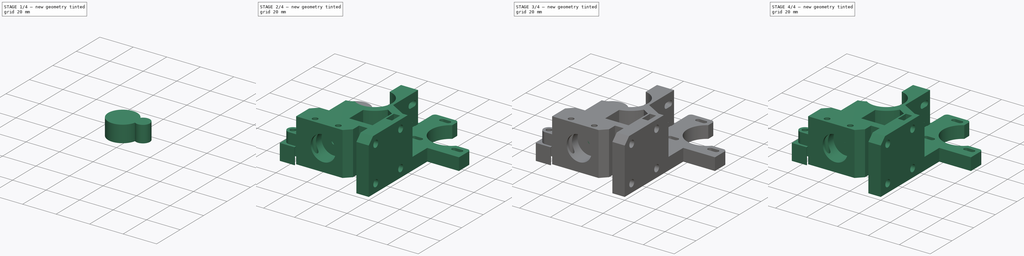
[diagram: build sequence overview — one tinted view per stage of 4, left to right]
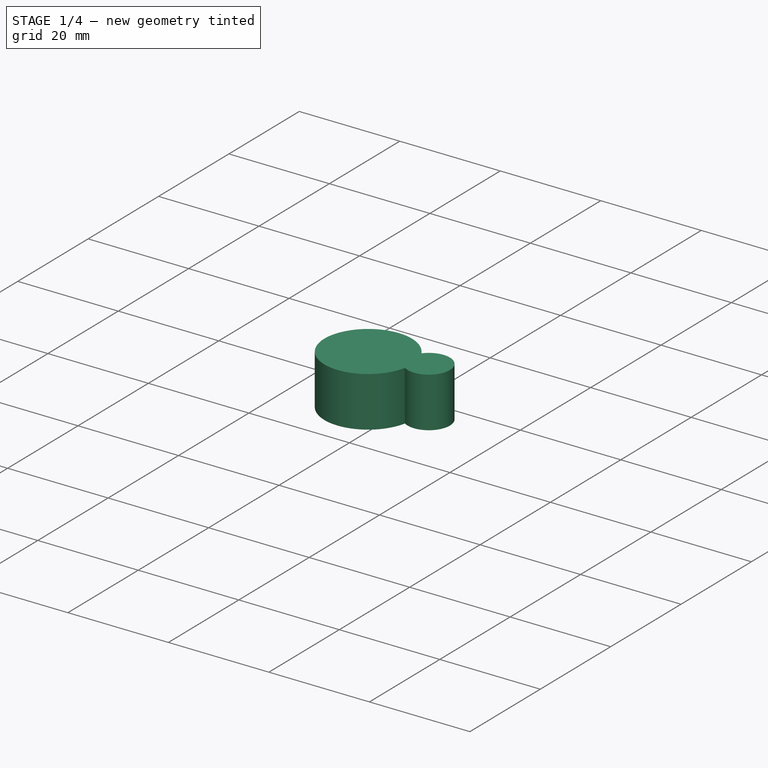
[diagram: stage 1 of 4 — iso view after this stage's code; geometry added in this stage tinted green]
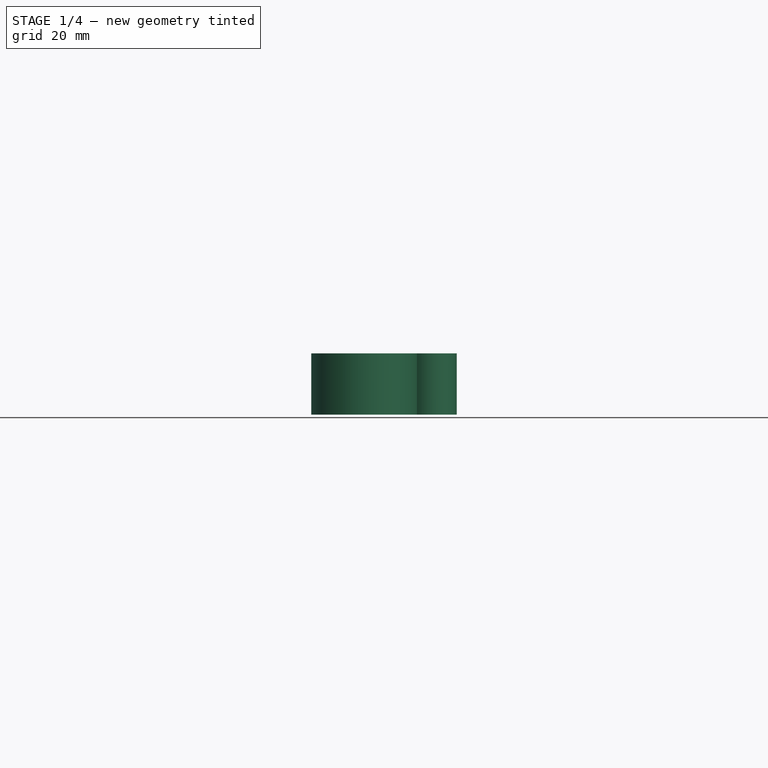
[diagram: stage 1 of 4 — front view after this stage's code; geometry added in this stage tinted green]
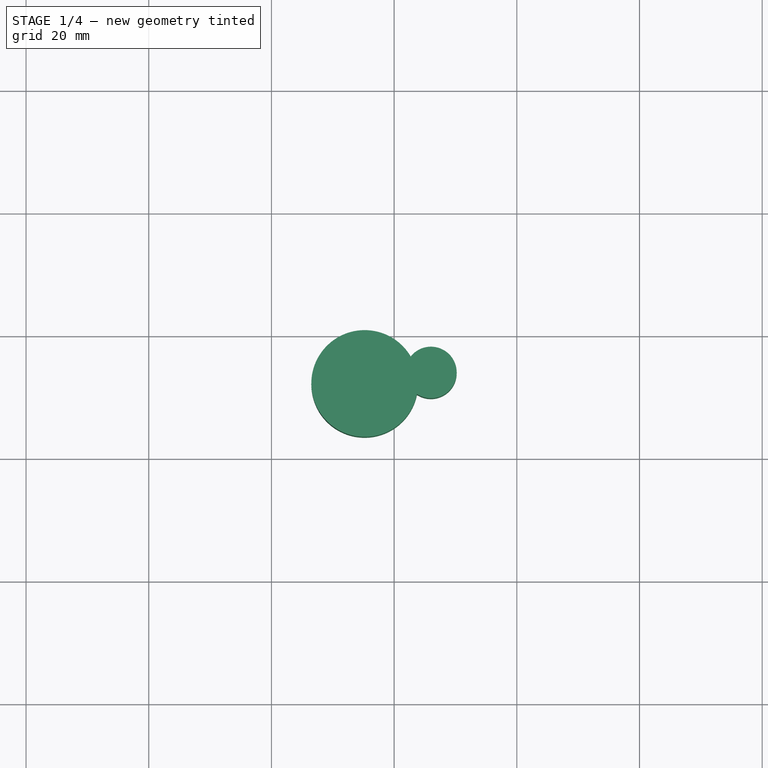
[diagram: stage 1 of 4 — top view after this stage's code; geometry added in this stage tinted green]
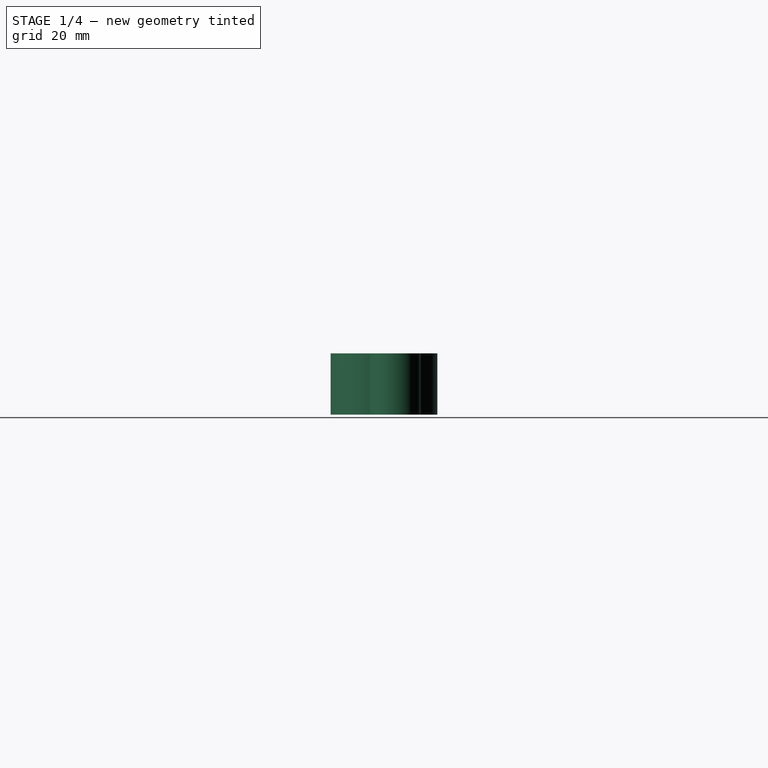
[diagram: stage 1 of 4 — right view after this stage's code; geometry added in this stage tinted green]
FCSTD DOCUMENT  (FreeCAD 0.14R3702 (Git))
Label: i3-rework-wade-extruder-1.75-nema14
License: CC-BY 3.0
LicenseURL: http://creativecommons.org/licenses/by/3.0/
objects: Sketcher::SketchObject×3, Part::Cut×3, PartDesign::Pad×2, Part::MultiFuse×2, Part::Cylinder×2, Part::Box×1, Part::Feature×1
note: 16 computed .brp shape members not serialized (recipe doc carries the construction recipe); baked Part::Feature solids carry a one-line shape summary decoded from their .brp

FEATURE [Part::Cylinder] Cylinder
  Angle = 360
  Height = 10
  Placement = pos=(-44.8,52.2,10) rot=(0,0,1;0rad)
  Radius = 8.7
FEATURE [Part::Cylinder] Cylinder001
  Angle = 360
  Height = 10
  Placement = pos=(-34,54,10) rot=(0,0,1;0rad)
  Radius = 4.2
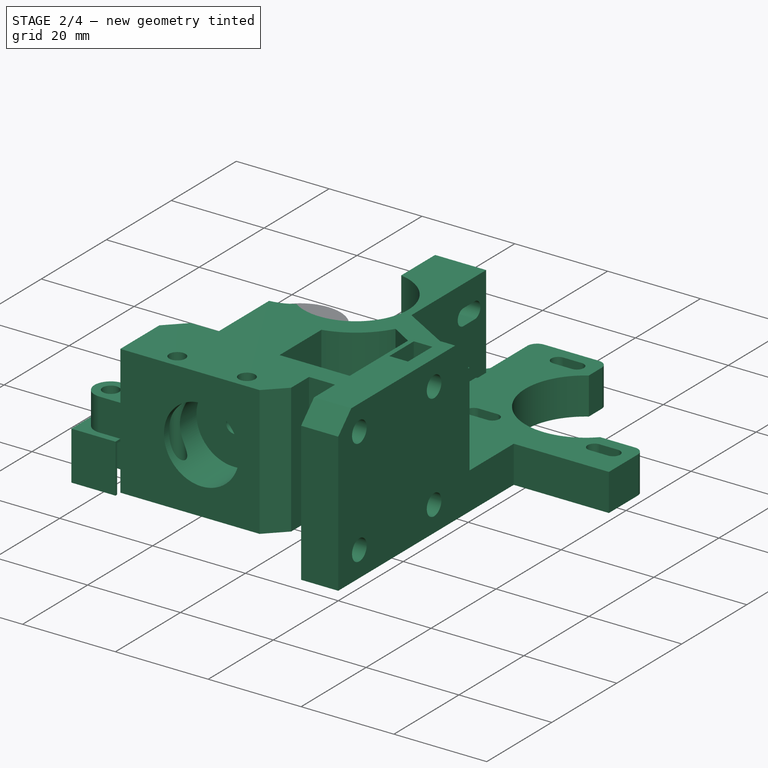
[diagram: stage 2 of 4 — iso view after this stage's code; geometry added in this stage tinted green]
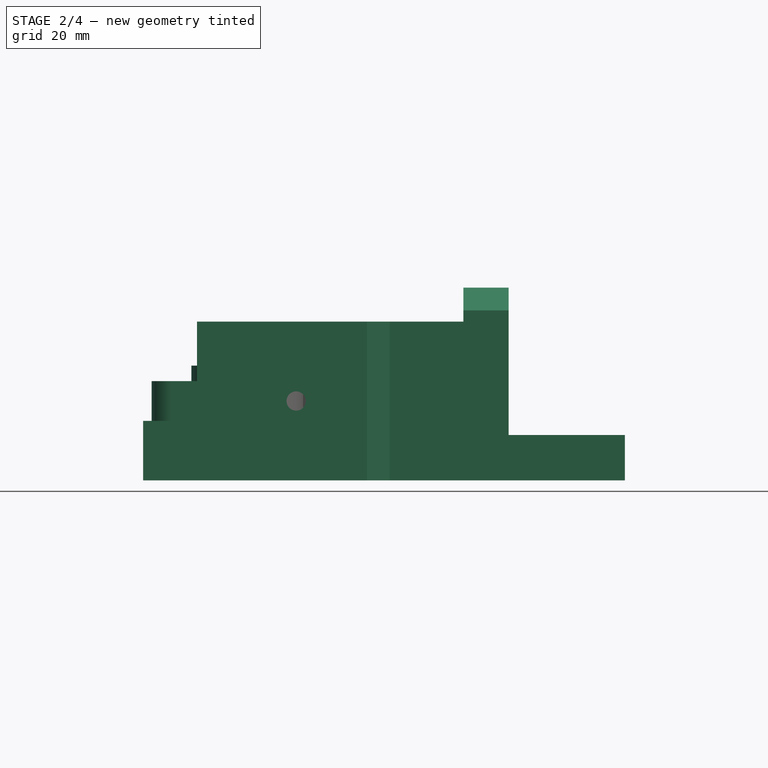
[diagram: stage 2 of 4 — front view after this stage's code; geometry added in this stage tinted green]
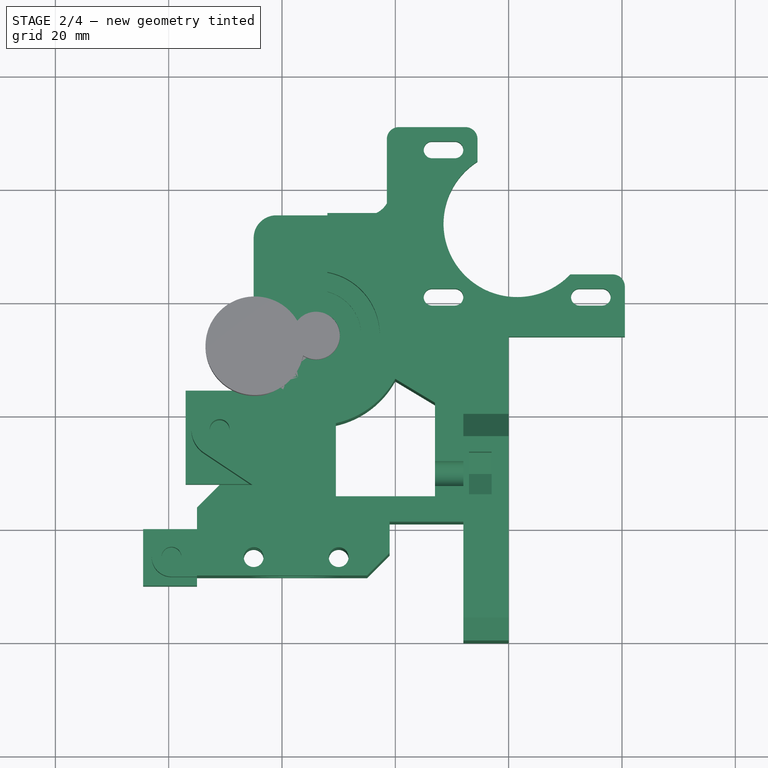
[diagram: stage 2 of 4 — top view after this stage's code; geometry added in this stage tinted green]
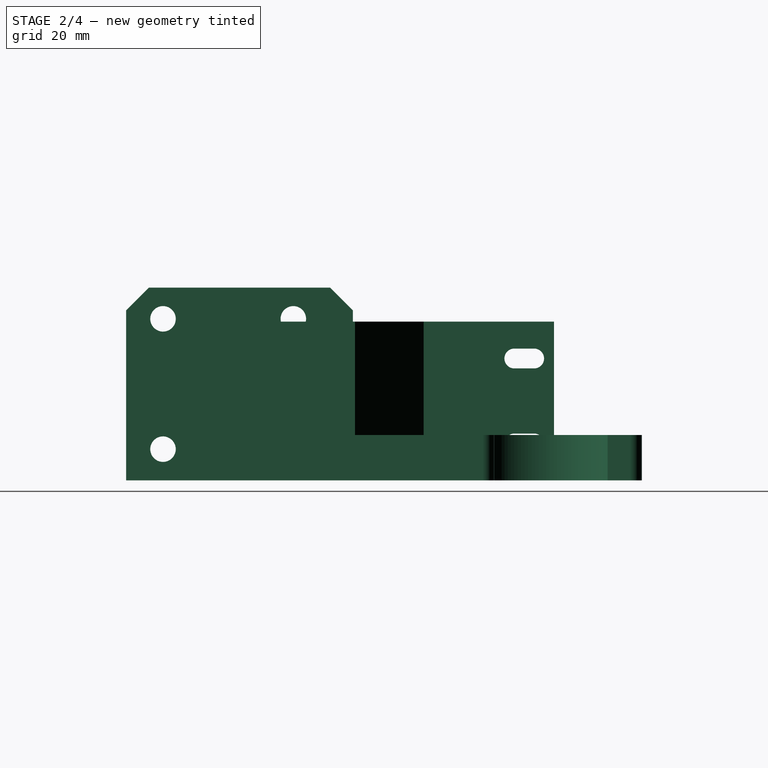
[diagram: stage 2 of 4 — right view after this stage's code; geometry added in this stage tinted green]
FEATURE [Part::Box] Box  label="Cube"
  Height = 10
  Length = 46
  Placement = pos=(-21,53,0) rot=(0,0,1;0rad)
  Width = 43
FEATURE [Sketcher::SketchObject] Sketch001
  Placement = pos=(1.5,74,0) rot=(0,0,1;0rad)
  sketch-geometry (34):
    g0: LineSegment [constr] StartX=-13 StartY=13 StartZ=0 EndX=13 EndY=13 EndZ=0
    g1: LineSegment [constr] StartX=13 StartY=13 StartZ=0 EndX=13 EndY=-13 EndZ=0
    g2: LineSegment [constr] StartX=13 StartY=-13 StartZ=0 EndX=-13 EndY=-13 EndZ=0
    g3: LineSegment [constr] StartX=-13 StartY=-13 StartZ=0 EndX=-13 EndY=13 EndZ=0
    g4: ArcOfCircle CenterX=-15 CenterY=13 CenterZ=0 NormalX=0 NormalY=0 NormalZ=1 Radius=1.5 StartAngle=1.5708 EndAngle=4.71239
    g5: ArcOfCircle CenterX=-11 CenterY=13 CenterZ=0 NormalX=0 NormalY=0 NormalZ=1 Radius=1.5 StartAngle=4.71238 EndAngle=7.85398
    g6: LineSegment StartX=-15 StartY=11.5 StartZ=0 EndX=-11 EndY=11.5 EndZ=0
    g7: LineSegment StartX=-15 StartY=14.5 StartZ=0 EndX=-11 EndY=14.5 EndZ=0
    g8: ArcOfCircle CenterX=-15 CenterY=-13 CenterZ=0 NormalX=0 NormalY=0 NormalZ=1 Radius=1.5 StartAngle=1.5708 EndAngle=4.71239
    g9: ArcOfCircle CenterX=-11 CenterY=-13 CenterZ=0 NormalX=0 NormalY=0 NormalZ=1 Radius=1.5 StartAngle=4.71238 EndAngle=7.85398
    g10: LineSegment StartX=-15 StartY=-14.5 StartZ=0 EndX=-11 EndY=-14.5 EndZ=0
    g11: LineSegment StartX=-15 StartY=-11.5 StartZ=0 EndX=-11 EndY=-11.5 EndZ=0
    g12: ArcOfCircle CenterX=11 CenterY=-13 CenterZ=0 NormalX=0 NormalY=0 NormalZ=1 Radius=1.5 StartAngle=1.5708 EndAngle=4.71239
    g13: ArcOfCircle CenterX=15 CenterY=-13 CenterZ=0 NormalX=0 NormalY=0 NormalZ=1 Radius=1.5 StartAngle=4.71239 EndAngle=7.85398
    g14: LineSegment StartX=11 StartY=-14.5 StartZ=0 EndX=15 EndY=-14.5 EndZ=0
    g15: LineSegment StartX=11 StartY=-11.5 StartZ=0 EndX=15 EndY=-11.5 EndZ=0
    g16: ArcOfCircle CenterX=0 CenterY=0 CenterZ=0 NormalX=0 NormalY=0 NormalZ=1 Radius=13 StartAngle=2.13941 EndAngle=5.5185
    g17: LineSegment [constr] StartX=-22 StartY=22 StartZ=0 EndX=22 EndY=22 EndZ=0
    g18: LineSegment [constr] StartX=22 StartY=22 StartZ=0 EndX=22 EndY=-22 EndZ=0
    g19: LineSegment [constr] StartX=-22 StartY=-22 StartZ=0 EndX=-22 EndY=22 EndZ=0
    g20: LineSegment [constr] StartX=-23 StartY=-9 StartZ=0 EndX=-9.38083 EndY=-9 EndZ=0
    g21: LineSegment StartX=19 StartY=-11.1213 StartZ=0 EndX=19 EndY=-20 EndZ=0
    g22: LineSegment StartX=-23 StartY=-22 StartZ=0 EndX=-23 EndY=-9 EndZ=0
    g23: LineSegment StartX=9.38083 StartY=-9 StartZ=0 EndX=16.8787 EndY=-9 EndZ=0
    g24: ArcOfCircle CenterX=16.8787 CenterY=-11.1213 CenterZ=0 NormalX=0 NormalY=0 NormalZ=1 Radius=2.12132 StartAngle=0 EndAngle=1.5708
    g25: LineSegment [constr] StartX=-22 StartY=-22 StartZ=0 EndX=22 EndY=-22 EndZ=0
    g26: LineSegment StartX=-1.5 StartY=-20 StartZ=0 EndX=19 EndY=-20 EndZ=0
    g27: LineSegment StartX=-1.5 StartY=-20 StartZ=0 EndX=-1.5 EndY=-22 EndZ=0
    g28: LineSegment StartX=-1.5 StartY=-22 StartZ=0 EndX=-23 EndY=-22 EndZ=0
    g29: LineSegment StartX=-23 StartY=14.8787 StartZ=0 EndX=-23 EndY=-9 EndZ=0
    g30: LineSegment StartX=-20.8787 StartY=17 StartZ=0 EndX=-9.12132 EndY=17 EndZ=0
    g31: LineSegment StartX=-7 StartY=14.8787 StartZ=0 EndX=-7 EndY=10.9545 EndZ=0
    g32: ArcOfCircle CenterX=-9.12132 CenterY=14.8787 CenterZ=0 NormalX=0 NormalY=0 NormalZ=1 Radius=2.12132 StartAngle=0 EndAngle=1.5708
    g33: ArcOfCircle CenterX=-20.8787 CenterY=14.8787 CenterZ=0 NormalX=0 NormalY=0 NormalZ=1 Radius=2.12132 StartAngle=1.5708 EndAngle=3.14159
  constraints (102):
    c: Coincident(g0,g1)
    c: Coincident(g1,g2)
    c: Coincident(g2,g3)
    c: Coincident(g3,g0)
    c: Horizontal(g2)
    c: Vertical(g3)
    c: Equal(g0,g3)
    c: Equal(g3,g2)
    c: Equal(g2,g1)
    c: Symmetric(g0,g0,g-2)
    c: Symmetric(g1,g0,g-1)
    c: Distance(g0) = 26
    c: Tangent(g4,g6)
    c: Tangent(g4,g7)
    c: Tangent(g5,g7)
    c: Coincident(g4,g7)
    c: Coincident(g4,g6)
    c: Coincident(g6,g5)
    c: Coincident(g7,g5)
    c: Horizontal(g6)
    c: Equal(g4,g5)
    c: Symmetric(g5,g4,g3)
    c: PointOnObject(g5,g0)
    c: DistanceY(g4,g4) = -3
    c: DistanceX(g7) = 4
    c: Tangent(g8,g10)
    c: Tangent(g8,g11)
    c: Tangent(g9,g11)
    c: Coincident(g8,g11)
    c: Coincident(g8,g10)
    c: Coincident(g10,g9)
    c: Coincident(g11,g9)
    c: Horizontal(g10)
    c: Equal(g8,g9)
    c: DistanceX(g10) = 4
    c: DistanceY(g8,g8) = -3
    c: Symmetric(g9,g8,g3)
    c: PointOnObject(g9,g2)
    c: Tangent(g12,g14)
    c: Tangent(g12,g15)
    c: Tangent(g13,g14)
    c: Tangent(g13,g15)
    c: Coincident(g12,g15)
    c: Coincident(g12,g14)
    c: Coincident(g14,g13)
    c: Coincident(g15,g13)
    c: Horizontal(g14)
    c: Equal(g12,g13)
    c: DistanceX(g14) = 4
    c: DistanceY(g13,g13) = -3
    c: Coincident(g16,g-1)
    c: Radius(g16) = 13
    c: Coincident(g17,g18)
    c: Coincident(g19,g17)
    c: Horizontal(g17)
    c: Vertical(g18)
    c: Vertical(g19)
    c: Symmetric(g17,g17,g-2)
    c: Symmetric(g18,g17,g-1)
    c: DistanceY(g18) = -44
    c: Symmetric(g12,g13,g1)
    c: PointOnObject(g12,g2)
    c: Coincident(g22,g20)
    c: Horizontal(g20)
    c: Vertical(g21)
    c: Vertical(g22)
    c: DistanceY(g22) = 13
    c: PointOnObject(g20,g16)
    c: Tangent(g20,g23)
    c: Tangent(g23,g24)
    c: Tangent(g21,g24)
    c: Distance(g23,g21) = 3
    c: Coincident(g25,g19)
    c: Coincident(g25,g18)
    c: Horizontal(g25)
    c: DistanceY(g21,g18) = -2
    c: Coincident(g26,g21)
    c: Horizontal(g26)
    c: DistanceX(g26) = 20.5
    c: Coincident(g27,g26)
    c: PointOnObject(g27,g25)
    c: Coincident(g28,g27)
    c: Coincident(g28,g22)
    c: Horizontal(g28)
    c: DistanceX(g21,g19) = -41
    c: Vertical(g27)
    c: Equal(g25,g18)
    c: Vertical(g29)
    c: Vertical(g31)
    c: Horizontal(g30)
    c: Coincident(g29,g20)
    c: Tangent(g30,g32)
    c: Tangent(g31,g32)
    c: Distance(g31,g30) = 3
    c: Coincident(g16,g31)
    c: Coincident(g16,g23)
    c: DistanceX(g22,g19) = 1
    c: Tangent(g30,g33)
    c: Tangent(g29,g33)
    c: Distance(g30,g29) = 3
    c: DistanceY(g20,g30) = 26
    c: DistanceX(g31,g29) = -16
FEATURE [Part::Feature] Part__Feature  label="BODY-EXTRUDEUR-WADE-3mm"
  shape: bbox 89.5 x 95.5 x 34 mm, 223 faces (baked)
FEATURE [Sketcher::SketchObject] Sketch
  Placement = pos=(0,0,0) rot=(1,0,0;3.14159rad)
  Support = -> Part__Feature [Face218]
  sketch-geometry (28):
    g0: LineSegment [constr] StartX=-11.1629 StartY=-60.9952 StartZ=0 EndX=14.8371 EndY=-86.9952 EndZ=0
    g1: LineSegment [constr] StartX=14.8371 StartY=-60.9952 StartZ=0 EndX=-11.1629 EndY=-86.9952 EndZ=0
    g2: GeomPoint [constr] X=1.83709 Y=-73.9952 Z=0
    g3: LineSegment [constr] StartX=-11.1629 StartY=-60.9952 StartZ=0 EndX=14.8371 EndY=-60.9952 EndZ=0
    g4: LineSegment [constr] StartX=-11.1629 StartY=-86.9952 StartZ=0 EndX=14.8371 EndY=-86.9952 EndZ=0
    g5: LineSegment [constr] StartX=-13.2629 StartY=-60.9952 StartZ=0 EndX=-11.1629 EndY=-60.9952 EndZ=0
    g6: LineSegment [constr] StartX=-11.1629 StartY=-60.9952 StartZ=0 EndX=-9.06292 EndY=-60.9952 EndZ=0
    g7: Circle [constr] CenterX=-13.2629 CenterY=-60.9952 CenterZ=0 NormalX=0 NormalY=0 NormalZ=1 Radius=1.6
    g8: Circle [constr] CenterX=-9.06292 CenterY=-60.9952 CenterZ=0 NormalX=0 NormalY=0 NormalZ=1 Radius=1.6
    g9: LineSegment StartX=-13.2629 StartY=-59.3952 StartZ=0 EndX=-9.06291 EndY=-59.3952 EndZ=0
    g10: LineSegment StartX=-13.2629 StartY=-62.5952 StartZ=0 EndX=-9.06294 EndY=-62.5952 EndZ=0
    g11: ArcOfCircle CenterX=-13.2629 CenterY=-60.9952 CenterZ=0 NormalX=0 NormalY=0 NormalZ=1 Radius=1.6 StartAngle=1.5708 EndAngle=4.71239
    g12: ArcOfCircle CenterX=-9.06292 CenterY=-60.9952 CenterZ=0 NormalX=0 NormalY=0 NormalZ=1 Radius=1.6 StartAngle=4.71238 EndAngle=7.85398
    g13: LineSegment [constr] StartX=-13.2629 StartY=-86.9952 StartZ=0 EndX=-11.1629 EndY=-86.9952 EndZ=0
    g14: LineSegment [constr] StartX=-11.1629 StartY=-86.9952 StartZ=0 EndX=-9.06292 EndY=-86.9952 EndZ=0
    g15: LineSegment [constr] StartX=12.7371 StartY=-60.9952 StartZ=0 EndX=14.8371 EndY=-60.9952 EndZ=0
    g16: LineSegment [constr] StartX=14.8371 StartY=-60.9952 StartZ=0 EndX=16.9371 EndY=-60.9952 EndZ=0
    g17: Circle [constr] CenterX=12.7371 CenterY=-60.9952 CenterZ=0 NormalX=0 NormalY=0 NormalZ=1 Radius=1.6
    g18: Circle [constr] CenterX=16.9371 CenterY=-60.9952 CenterZ=0 NormalX=0 NormalY=0 NormalZ=1 Radius=1.6
    g19: LineSegment StartX=12.7371 StartY=-59.3952 StartZ=0 EndX=16.9371 EndY=-59.3952 EndZ=0
    g20: LineSegment StartX=12.7371 StartY=-62.5952 StartZ=0 EndX=16.9371 EndY=-62.5952 EndZ=0
    g21: ArcOfCircle CenterX=12.7371 CenterY=-60.9952 CenterZ=0 NormalX=0 NormalY=0 NormalZ=1 Radius=1.6 StartAngle=1.5708 EndAngle=4.71238
    g22: ArcOfCircle CenterX=16.9371 CenterY=-60.9952 CenterZ=0 NormalX=0 NormalY=0 NormalZ=1 Radius=1.6 StartAngle=4.7124 EndAngle=7.85399
    g23: LineSegment [constr] StartX=-11.1629 StartY=-60.9952 StartZ=0 EndX=-11.1629 EndY=-86.9952 EndZ=0
    g24: ArcOfCircle CenterX=-13.2629 CenterY=-86.9952 CenterZ=0 NormalX=0 NormalY=0 NormalZ=1 Radius=0.907863 StartAngle=2.7456 EndAngle=7.85398
    g25: ArcOfCircle CenterX=-12.5038 CenterY=-85.1795 CenterZ=0 NormalX=0 NormalY=0 NormalZ=1 Radius=0.907863 StartAngle=4.71239 EndAngle=9.02878
    g26: LineSegment StartX=-13.2629 StartY=-86.0873 StartZ=0 EndX=-12.5038 EndY=-86.0873 EndZ=0
    g27: LineSegment StartX=-14.1005 StartY=-86.645 StartZ=0 EndX=-13.3414 EndY=-84.8293 EndZ=0
FEATURE [PartDesign::Pad] Pad
  Length = 8
  Length2 = 100
  Placement = pos=(1.5,74,0) rot=(0,0,1;0rad)
  Sketch = -> Sketch001
  Type = 0
FEATURE [Part::Cut] Cut
  Base = -> Part__Feature
  Tool = -> Box
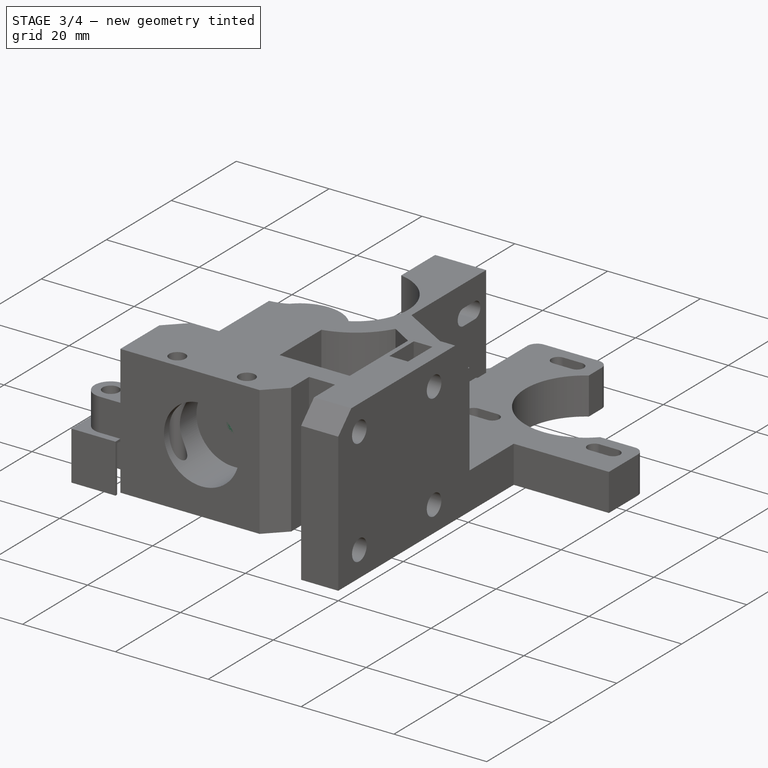
[diagram: stage 3 of 4 — iso view after this stage's code; geometry added in this stage tinted green]
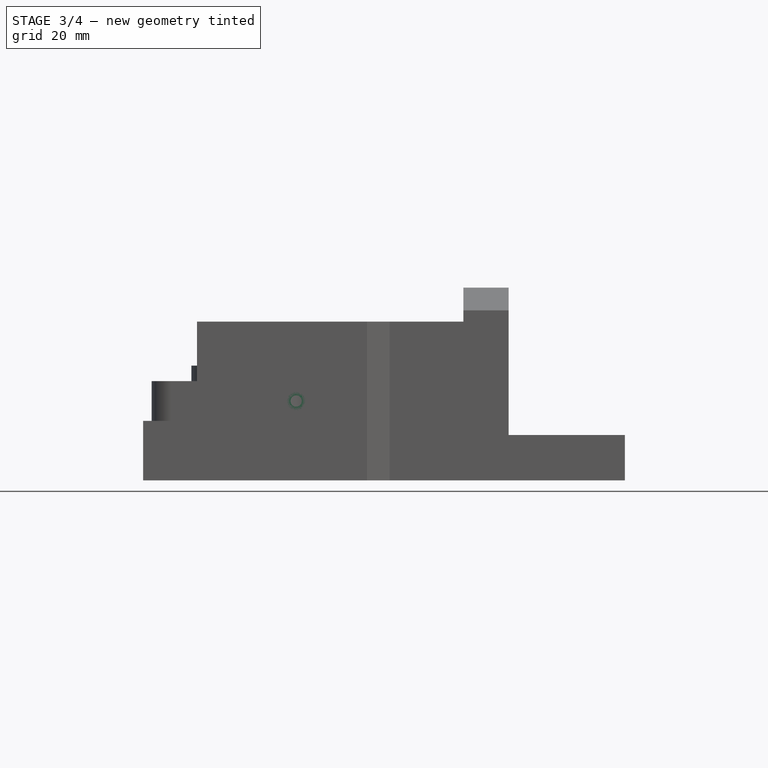
[diagram: stage 3 of 4 — front view after this stage's code; geometry added in this stage tinted green]
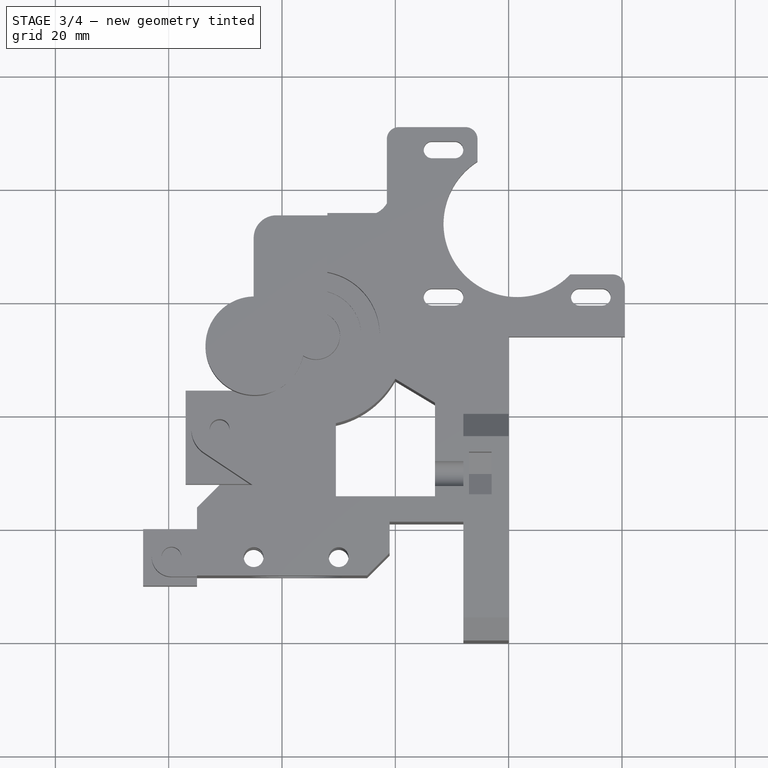
[diagram: stage 3 of 4 — top view after this stage's code; geometry added in this stage tinted green]
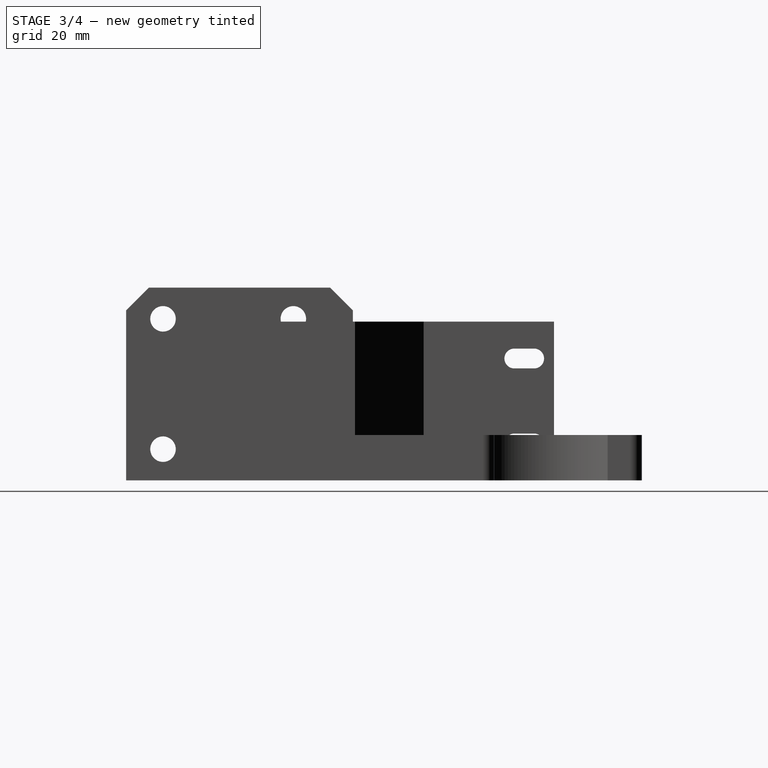
[diagram: stage 3 of 4 — right view after this stage's code; geometry added in this stage tinted green]
FEATURE [Part::MultiFuse] Fusion
  Shapes = -> [Pad,Cut]
FEATURE [Sketcher::SketchObject] Sketch002
  ExternalGeometry = -> [Fusion]
  Placement = pos=(0,21.5,0) rot=(1,0,0;1.5708rad)
  Support = -> Fusion [Face176]
  sketch-geometry (2):
    g0: Circle CenterX=-37.5 CenterY=14 CenterZ=0 NormalX=0 NormalY=0 NormalZ=1 Radius=1.75
    g1: Circle CenterX=-37.5 CenterY=14 CenterZ=0 NormalX=0 NormalY=0 NormalZ=1 Radius=1
  constraints (4):
    c: Coincident(g0,g-3)
    c: Radius(g0) = 1.75
    c: Coincident(g1,g0)
    c: Radius(g1) = 1
FEATURE [PartDesign::Pad] Pad001
  Length = 29
  Length2 = 100
  Reversed = true
  Sketch = -> Sketch002
  Type = 0
FEATURE [Part::MultiFuse] Fusion001
  Shapes = -> [Pad001,Fusion]
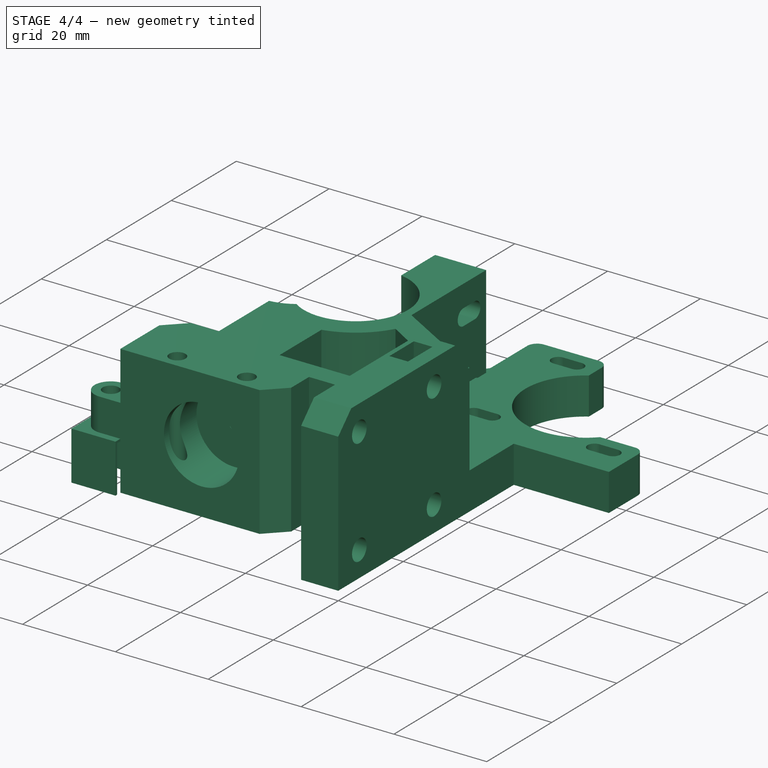
[diagram: stage 4 of 4 — iso view after this stage's code; geometry added in this stage tinted green]
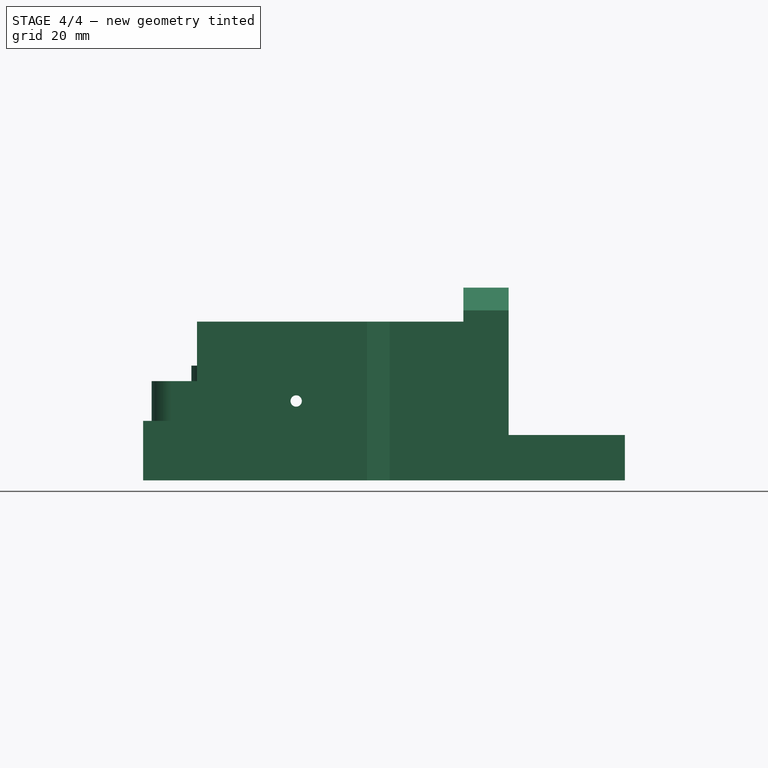
[diagram: stage 4 of 4 — front view after this stage's code; geometry added in this stage tinted green]
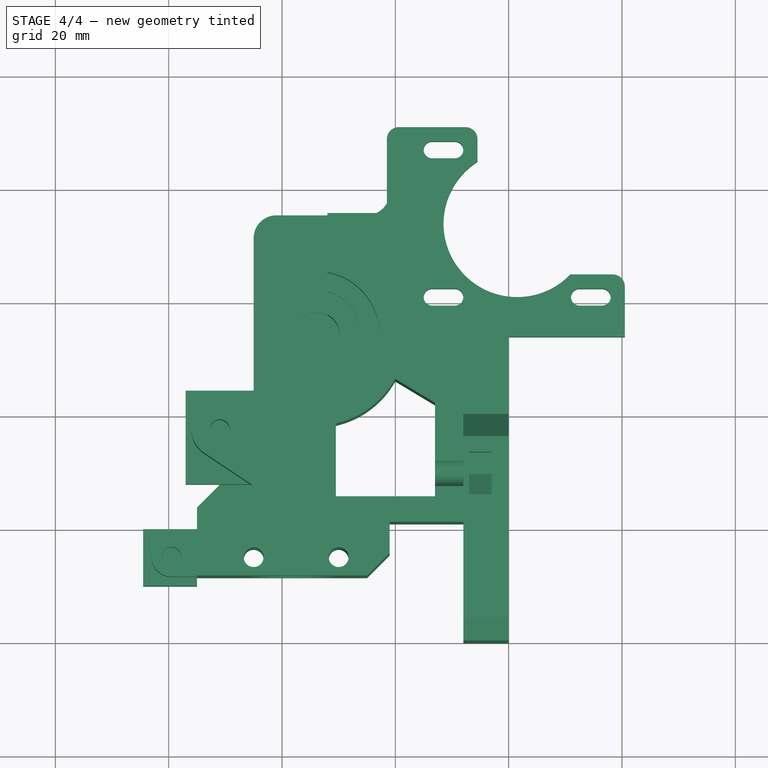
[diagram: stage 4 of 4 — top view after this stage's code; geometry added in this stage tinted green]
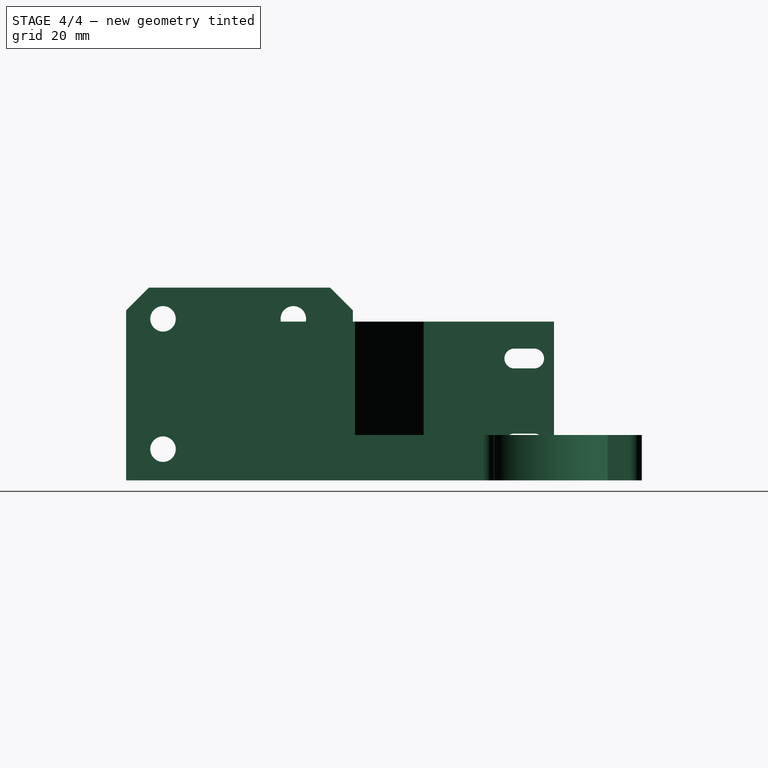
[diagram: stage 4 of 4 — right view after this stage's code; geometry added in this stage tinted green]
FEATURE [Part::Cut] Cut001
  Base = -> Fusion001
  Tool = -> Cylinder
FEATURE [Part::Cut] Cut002
  Base = -> Cut001
  Tool = -> Cylinder001
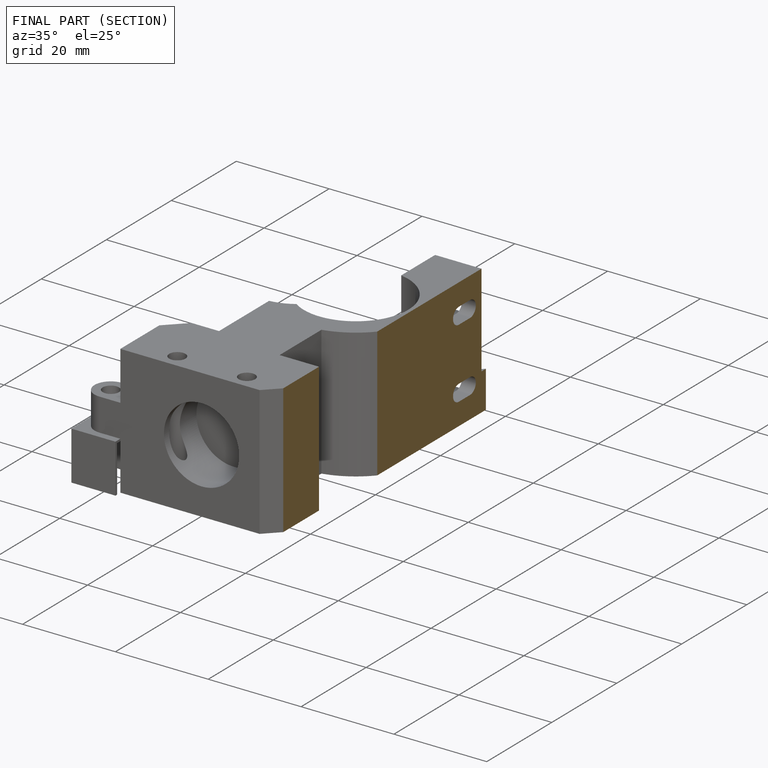
[diagram: finished part — half-section view (interior)]
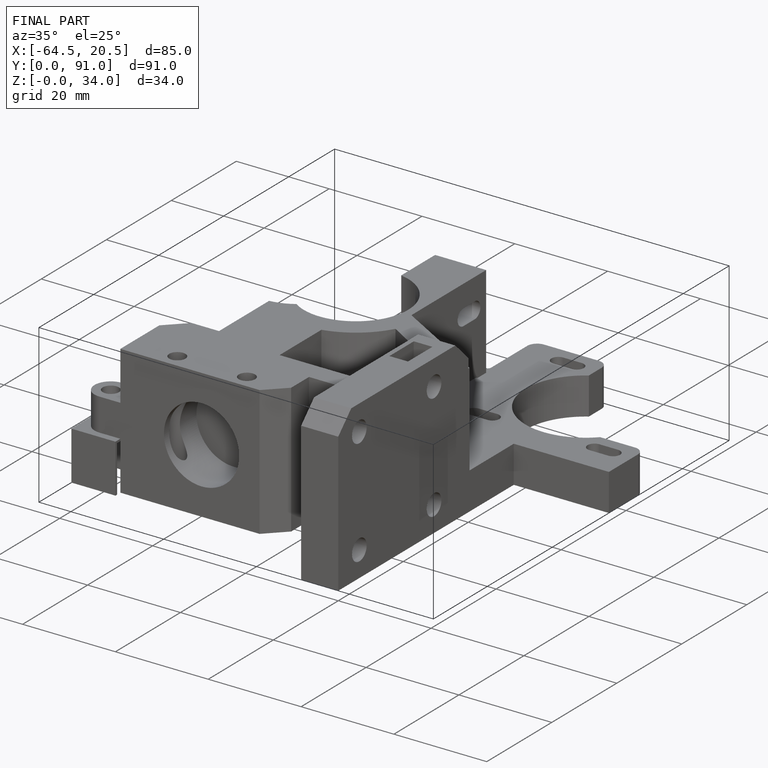
[diagram: finished part — iso view with bounding-box wireframe]
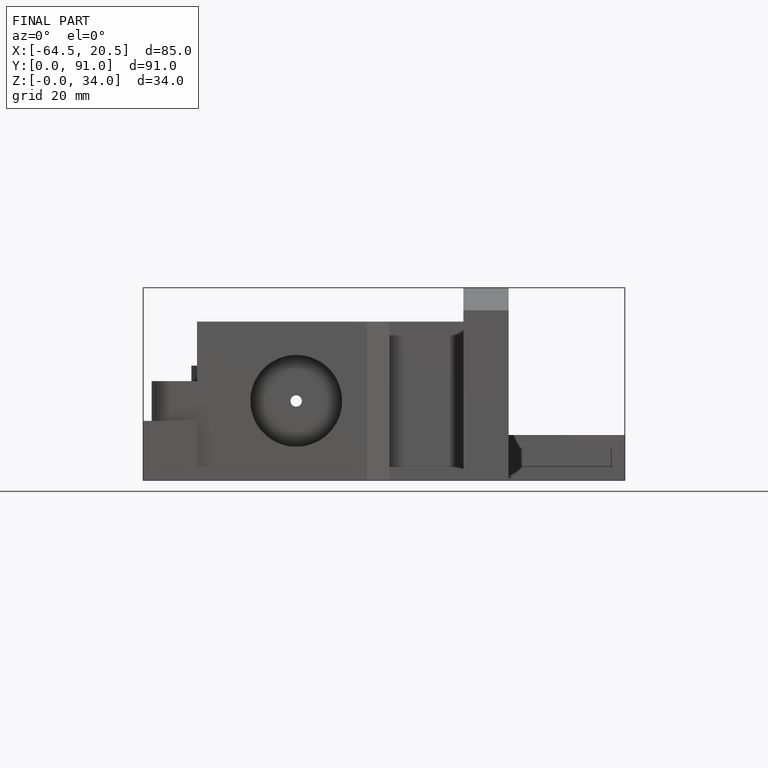
[diagram: finished part — front view with bounding-box wireframe]
